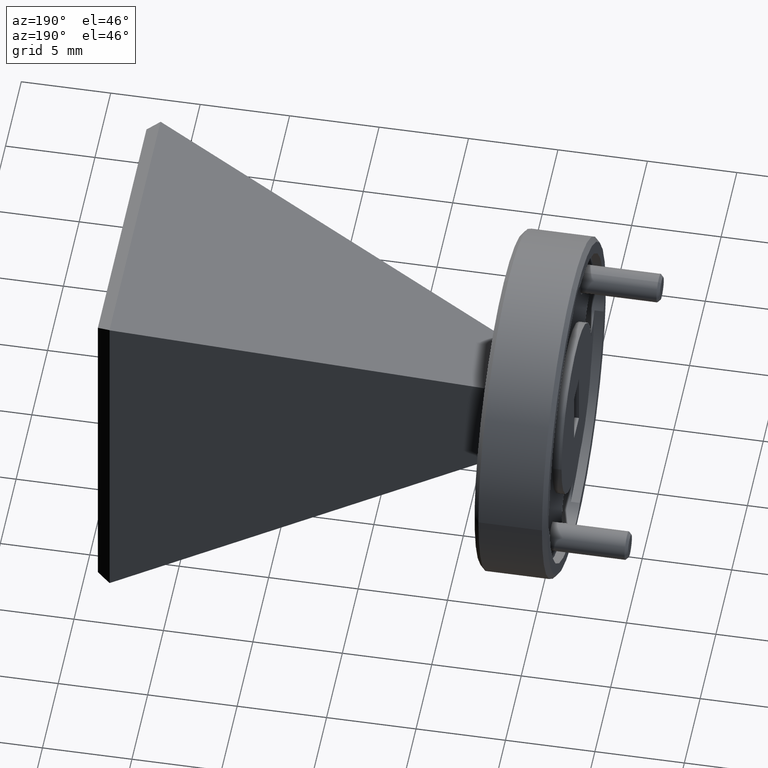
[diagram: clean part render]
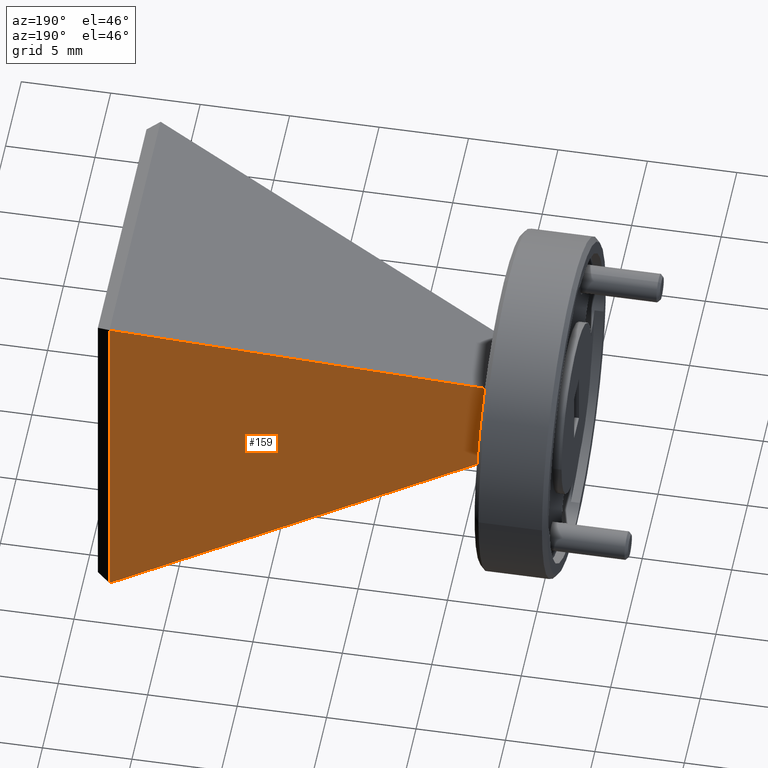
[diagram: same view with one face highlighted and labeled with its STEP entity id]
A machine part, auxiliary view. The second image highlights one B-rep face of the part: STEP entity #159.
In plain terms, the highlighted planar face has unit normal (-0.2871, 0.9579, 0).
Its self-contained STEP definition (entity closure, byte-faithful):
#159 = ADVANCED_FACE ( 'NONE', ( #1051 ), #1806, .T. ) ;
#164 = DIRECTION ( 'NONE',  ( -0.9063923436852258098, -0.2716950022840330381, 0.3234729432930714688 ) ) ;
#196 = EDGE_LOOP ( 'NONE', ( #1798, #1273, #1952, #1159 ) ) ;
#227 = EDGE_CURVE ( 'NONE', #631, #1941, #2142, .T. ) ;
#299 = CARTESIAN_POINT ( 'NONE',  ( -2.027673718292400729, 0.2573685945160724131, 0.7861574694021060683 ) ) ;
#314 = VERTEX_POINT ( 'NONE', #715 ) ;
#361 = CARTESIAN_POINT ( 'NONE',  ( -1.213673718292406889, 0.5013685945160792912, 0.3816574694021060421 ) ) ;
#397 = CARTESIAN_POINT ( 'NONE',  ( -1.213673718292406889, 0.5013685945160792912, 1.190657469402106150 ) ) ;
#490 = CARTESIAN_POINT ( 'NONE',  ( -1.242410449409350193, 0.4927546358028919715, 0.3919130227061258243 ) ) ;
#507 = EDGE_CURVE ( 'NONE', #631, #314, #1600, .T. ) ;
#584 = DIRECTION ( 'NONE',  ( -0.2871319571062426190, 0.9578910372314477506, 0.000000000000000000 ) ) ;
#631 = VERTEX_POINT ( 'NONE', #2274 ) ;
#715 = CARTESIAN_POINT ( 'NONE',  ( -2.027673718292400284, 0.2573685945160726907, 0.9001574694021062806 ) ) ;
#725 = CARTESIAN_POINT ( 'NONE',  ( -2.027673718292400284, 0.2573685945160726907, 0.6721574694021058560 ) ) ;
#786 = CARTESIAN_POINT ( 'NONE',  ( -0.6004620224325414313, 0.6851814370097061291, 0.7861574694021060683 ) ) ;
#1036 = EDGE_CURVE ( 'NONE', #1941, #2525, #1568, .T. ) ;
#1051 = FACE_OUTER_BOUND ( 'NONE', #196, .T. ) ;
#1120 = DIRECTION ( 'NONE',  ( 0.000000000000000000, 0.000000000000000000, 1.000000000000000000 ) ) ;
#1159 = ORIENTED_EDGE ( 'NONE', *, *, #1971, .T. ) ;
#1273 = ORIENTED_EDGE ( 'NONE', *, *, #227, .T. ) ;
#1305 = LINE ( 'NONE', #299, #2327 ) ;
#1491 = VECTOR ( 'NONE', #1817, 39.37007874015748143 ) ;
#1525 = VECTOR ( 'NONE', #1526, 39.37007874015748143 ) ;
#1526 = DIRECTION ( 'NONE',  ( 0.000000000000000000, 0.000000000000000000, -1.000000000000000000 ) ) ;
#1561 = AXIS2_PLACEMENT_3D ( 'NONE', #786, #584, #2210 ) ;
#1568 = LINE ( 'NONE', #361, #1772 ) ;
#1600 = LINE ( 'NONE', #397, #1491 ) ;
#1772 = VECTOR ( 'NONE', #164, 39.37007874015748854 ) ;
#1798 = ORIENTED_EDGE ( 'NONE', *, *, #507, .F. ) ;
#1806 = PLANE ( 'NONE',  #1561 ) ;
#1817 = DIRECTION ( 'NONE',  ( -0.9063923436852259208, -0.2716950022840330936, -0.3234729432930713577 ) ) ;
#1941 = VERTEX_POINT ( 'NONE', #490 ) ;
#1952 = ORIENTED_EDGE ( 'NONE', *, *, #1036, .T. ) ;
#1971 = EDGE_CURVE ( 'NONE', #2525, #314, #1305, .T. ) ;
#2142 = LINE ( 'NONE', #2572, #1525 ) ;
#2210 = DIRECTION ( 'NONE',  ( -0.9578910372314477506, -0.2871319571062426190, 0.000000000000000000 ) ) ;
#2274 = CARTESIAN_POINT ( 'NONE',  ( -1.242410449409350193, 0.4927546358028919715, 1.180401916098086312 ) ) ;
#2327 = VECTOR ( 'NONE', #1120, 39.37007874015748143 ) ;
#2525 = VERTEX_POINT ( 'NONE', #725 ) ;
#2572 = CARTESIAN_POINT ( 'NONE',  ( -1.242410449409350193, 0.4927546358028918605, 0.3816574694021060421 ) ) ;